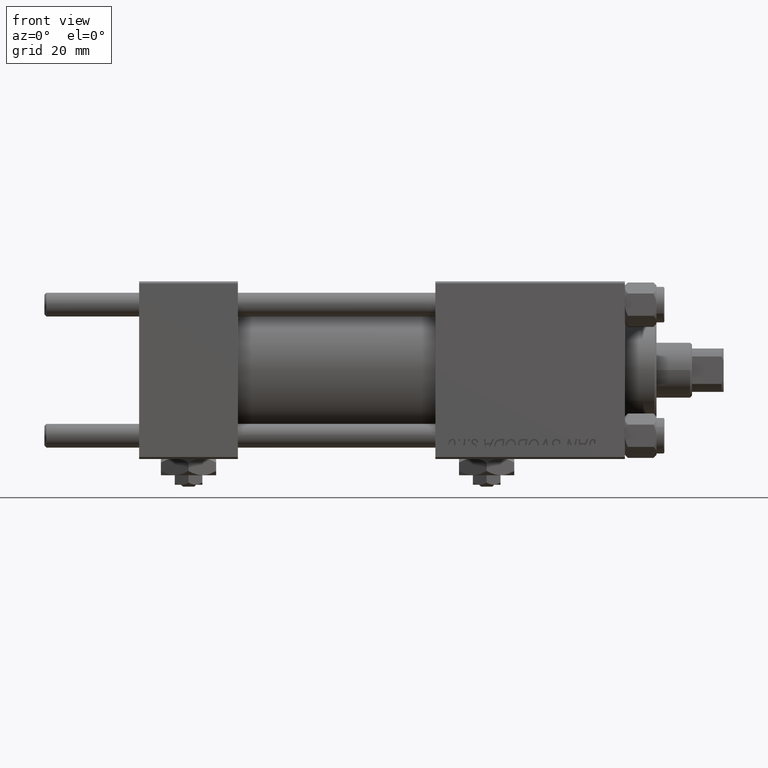
[diagram: clean part render]
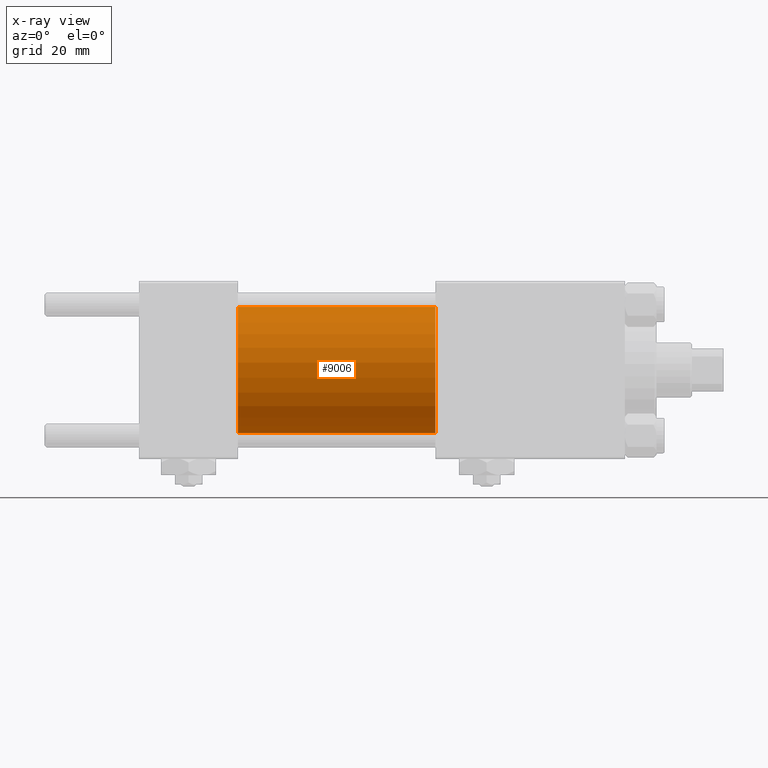
[diagram: x-ray — body ghosted, one internal face saturated and labeled with its STEP entity id]
A machine part, front view, then the same camera in x-ray: the body is ghosted and one INTERNAL B-rep face — a face not visible from any outside direction — is saturated and labeled: STEP entity #9006.
In plain terms, the highlighted cylindrical surface (partial cylindrical patch) has radius 16 mm, axis along (-1, -0, -0).
Its self-contained STEP definition (entity closure, byte-faithful):
#1956 = CARTESIAN_POINT ( 'NONE',  ( 25.00000000000000000, 0.000000000000000000, 16.00000000000000000 ) ) ;
#4890 = DIRECTION ( 'NONE',  ( 0.000000000000000000, 0.000000000000000000, -1.000000000000000000 ) ) ;
#5578 = CIRCLE ( 'NONE', #23112, 16.00000000000000000 ) ;
#6235 = AXIS2_PLACEMENT_3D ( 'NONE', #31383, #31653, #8019 ) ;
#8019 = DIRECTION ( 'NONE',  ( 0.000000000000000000, 0.000000000000000000, 1.000000000000000000 ) ) ;
#8216 = AXIS2_PLACEMENT_3D ( 'NONE', #24833, #21666, #4890 ) ;
#9006 = ADVANCED_FACE ( 'NONE', ( #39274 ), #51868, .F. ) ;
#9531 = VECTOR ( 'NONE', #43462, 1000.000000000000000 ) ;
#10656 = CARTESIAN_POINT ( 'NONE',  ( 75.00000000000001421, 1.959434878635765131E-15, -16.00000000000000000 ) ) ;
#10851 = LINE ( 'NONE', #15037, #41779 ) ;
#12616 = VERTEX_POINT ( 'NONE', #10656 ) ;
#15037 = CARTESIAN_POINT ( 'NONE',  ( 75.00000000000001421, 1.959434878635765131E-15, -16.00000000000000000 ) ) ;
#15360 = CARTESIAN_POINT ( 'NONE',  ( 75.00000000000001421, 0.000000000000000000, 0.000000000000000000 ) ) ;
#16152 = CARTESIAN_POINT ( 'NONE',  ( 75.00000000000001421, 0.000000000000000000, 16.00000000000000000 ) ) ;
#20222 = ORIENTED_EDGE ( 'NONE', *, *, #44535, .F. ) ;
#21666 = DIRECTION ( 'NONE',  ( 1.000000000000000000, 0.000000000000000000, 0.000000000000000000 ) ) ;
#22968 = DIRECTION ( 'NONE',  ( 1.000000000000000000, 0.000000000000000000, 0.000000000000000000 ) ) ;
#23112 = AXIS2_PLACEMENT_3D ( 'NONE', #15360, #22968, #27438 ) ;
#23429 = EDGE_CURVE ( 'NONE', #12616, #32805, #10851, .T. ) ;
#24833 = CARTESIAN_POINT ( 'NONE',  ( 25.00000000000000000, 0.000000000000000000, 0.000000000000000000 ) ) ;
#26051 = ORIENTED_EDGE ( 'NONE', *, *, #39977, .T. ) ;
#27438 = DIRECTION ( 'NONE',  ( 0.000000000000000000, 0.000000000000000000, -1.000000000000000000 ) ) ;
#28334 = ORIENTED_EDGE ( 'NONE', *, *, #23429, .T. ) ;
#30024 = CIRCLE ( 'NONE', #8216, 16.00000000000000000 ) ;
#31329 = VERTEX_POINT ( 'NONE', #1956 ) ;
#31383 = CARTESIAN_POINT ( 'NONE',  ( 75.00000000000001421, 0.000000000000000000, 0.000000000000000000 ) ) ;
#31653 = DIRECTION ( 'NONE',  ( -1.000000000000000000, -0.000000000000000000, -0.000000000000000000 ) ) ;
#32038 = CARTESIAN_POINT ( 'NONE',  ( 25.00000000000000000, 1.959434878635765131E-15, -16.00000000000000000 ) ) ;
#32805 = VERTEX_POINT ( 'NONE', #32038 ) ;
#33370 = EDGE_CURVE ( 'NONE', #37795, #31329, #43975, .T. ) ;
#37172 = CARTESIAN_POINT ( 'NONE',  ( 75.00000000000001421, 0.000000000000000000, 16.00000000000000000 ) ) ;
#37795 = VERTEX_POINT ( 'NONE', #37172 ) ;
#39274 = FACE_OUTER_BOUND ( 'NONE', #39354, .T. ) ;
#39354 = EDGE_LOOP ( 'NONE', ( #26051, #28334, #20222, #42569 ) ) ;
#39977 = EDGE_CURVE ( 'NONE', #37795, #12616, #5578, .T. ) ;
#41779 = VECTOR ( 'NONE', #43114, 1000.000000000000000 ) ;
#42569 = ORIENTED_EDGE ( 'NONE', *, *, #33370, .F. ) ;
#43114 = DIRECTION ( 'NONE',  ( -1.000000000000000000, -0.000000000000000000, -0.000000000000000000 ) ) ;
#43462 = DIRECTION ( 'NONE',  ( -1.000000000000000000, -0.000000000000000000, -0.000000000000000000 ) ) ;
#43975 = LINE ( 'NONE', #16152, #9531 ) ;
#44535 = EDGE_CURVE ( 'NONE', #31329, #32805, #30024, .T. ) ;
#51868 = CYLINDRICAL_SURFACE ( 'NONE', #6235, 16.00000000000000000 ) ;